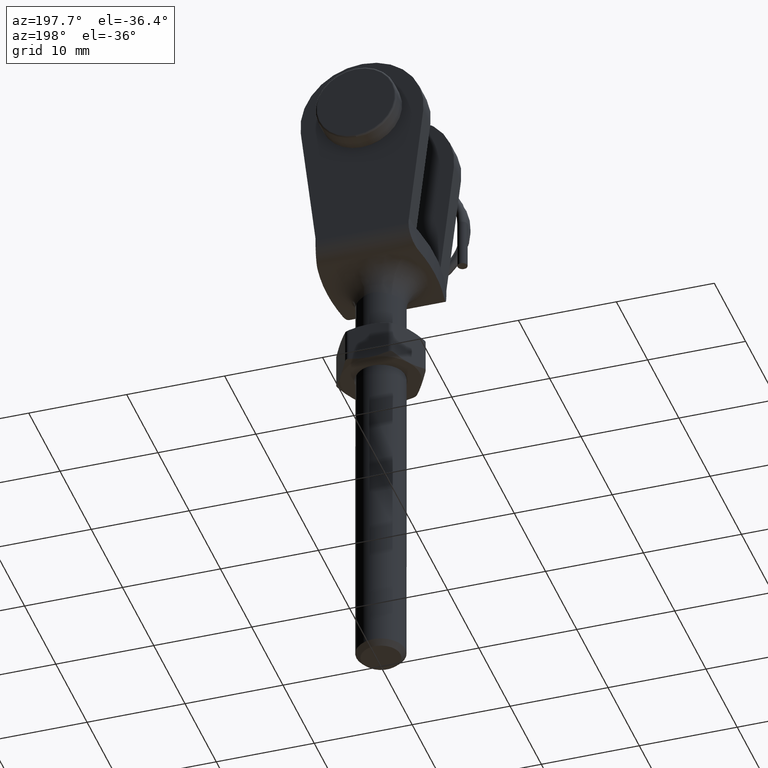
[diagram: clean part render]
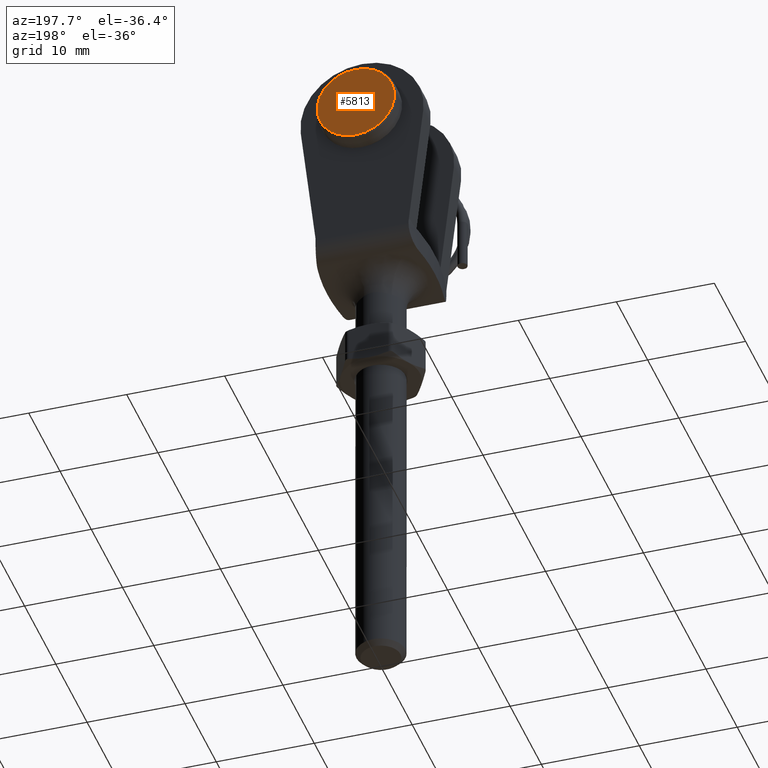
[diagram: same view with one face highlighted and labeled with its STEP entity id]
A machine part, auxiliary view. The second image highlights one B-rep face of the part: STEP entity #5813.
In plain terms, the highlighted planar face has unit normal (0, 1, -0).
Its self-contained STEP definition (entity closure, byte-faithful):
#3217 = ORIENTED_EDGE ( 'NONE', *, *, #5953, .T. ) ;
#3346 = AXIS2_PLACEMENT_3D ( 'NONE', #9076, #12262, #5826 ) ;
#3830 = FACE_OUTER_BOUND ( 'NONE', #8797, .T. ) ;
#5813 = ADVANCED_FACE ( 'NONE', ( #3830 ), #17101, .T. ) ;
#5826 = DIRECTION ( 'NONE',  ( 0.000000000000000000, 0.000000000000000000, -1.000000000000000000 ) ) ;
#5953 = EDGE_CURVE ( 'NONE', #19133, #19133, #14934, .T. ) ;
#7639 = DIRECTION ( 'NONE',  ( 0.000000000000000000, 0.000000000000000000, -1.000000000000000000 ) ) ;
#8797 = EDGE_LOOP ( 'NONE', ( #3217 ) ) ;
#9076 = CARTESIAN_POINT ( 'NONE',  ( 0.000000000000000000, 5.421010862427522170E-17, 0.000000000000000000 ) ) ;
#9218 = CARTESIAN_POINT ( 'NONE',  ( 0.000000000000000000, 5.421010862427522170E-17, -3.949999999999999734 ) ) ;
#12262 = DIRECTION ( 'NONE',  ( -0.000000000000000000, -1.000000000000000000, -0.000000000000000000 ) ) ;
#12281 = DIRECTION ( 'NONE',  ( 0.000000000000000000, -1.000000000000000000, -0.000000000000000000 ) ) ;
#14934 = CIRCLE ( 'NONE', #3346, 3.949999999999999734 ) ;
#15755 = AXIS2_PLACEMENT_3D ( 'NONE', #20353, #12281, #7639 ) ;
#17101 = PLANE ( 'NONE',  #15755 ) ;
#19133 = VERTEX_POINT ( 'NONE', #9218 ) ;
#20353 = CARTESIAN_POINT ( 'NONE',  ( 4.150000000000000355, 5.510910596163088939E-17, 0.000000000000000000 ) ) ;